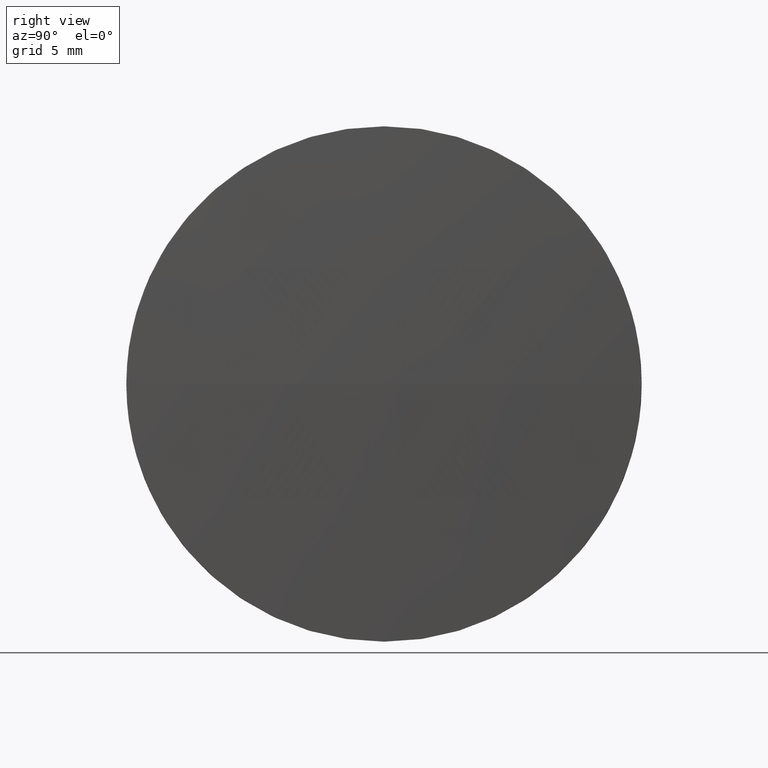
[diagram: clean part render]
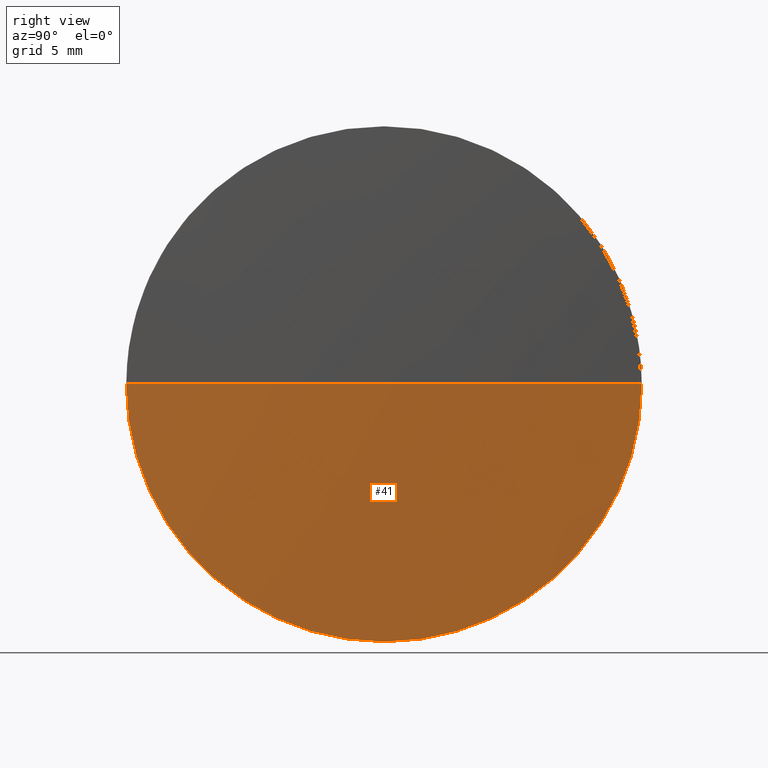
[diagram: same view with one face highlighted and labeled with its STEP entity id]
A machine part, right view. The second image highlights one B-rep face of the part: STEP entity #41.
In plain terms, the highlighted spherical surface has radius 268.967 mm.
Its self-contained STEP definition (entity closure, byte-faithful):
#6 = EDGE_CURVE ( 'NONE', #99, #131, #138, .T. ) ;
#9 = CARTESIAN_POINT ( 'NONE',  ( 695.2543296014569000, 68.74304805119973600, 0.0000000000000000000 ) ) ;
#11 = DIRECTION ( 'NONE',  ( -0.0000000000000000000, 0.0000000000000000000, -1.000000000000000000 ) ) ;
#20 = ORIENTED_EDGE ( 'NONE', *, *, #128, .F. ) ;
#28 = FACE_OUTER_BOUND ( 'NONE', #122, .T. ) ;
#32 = CARTESIAN_POINT ( 'NONE',  ( 694.9543296014569500, 56.04304805120011000, -1.555301434917091100E-015 ) ) ;
#35 = CARTESIAN_POINT ( 'NONE',  ( 694.9543296014569500, 68.74304805119973600, -12.70000000000000300 ) ) ;
#36 = DIRECTION ( 'NONE',  ( 0.0000000000000000000, 0.0000000000000000000, 1.000000000000000000 ) ) ;
#41 = ADVANCED_FACE ( 'NONE', ( #28 ), #117, .T. ) ;
#42 = CARTESIAN_POINT ( 'NONE',  ( 694.9543296014569500, 68.74304805119973600, 0.0000000000000000000 ) ) ;
#43 = DIRECTION ( 'NONE',  ( 0.0000000000000000000, 0.0000000000000000000, 1.000000000000000000 ) ) ;
#49 = CARTESIAN_POINT ( 'NONE',  ( 694.9543296014569500, 81.44304805119935500, 0.0000000000000000000 ) ) ;
#51 = DIRECTION ( 'NONE',  ( -0.0000000000000000000, 0.0000000000000000000, 1.000000000000000000 ) ) ;
#52 = VERTEX_POINT ( 'NONE', #32 ) ;
#55 = AXIS2_PLACEMENT_3D ( 'NONE', #141, #172, #36 ) ;
#75 = AXIS2_PLACEMENT_3D ( 'NONE', #105, #11, #114 ) ;
#78 = CIRCLE ( 'NONE', #55, 12.70000000000000300 ) ;
#81 = VERTEX_POINT ( 'NONE', #9 ) ;
#85 = ORIENTED_EDGE ( 'NONE', *, *, #184, .F. ) ;
#91 = DIRECTION ( 'NONE',  ( 0.0000000000000000000, 1.224646799147353200E-016, -1.000000000000000000 ) ) ;
#95 = CARTESIAN_POINT ( 'NONE',  ( 426.2876629347877600, 68.74304805119972200, 0.0000000000000000000 ) ) ;
#99 = VERTEX_POINT ( 'NONE', #49 ) ;
#103 = CIRCLE ( 'NONE', #176, 268.9666666666692000 ) ;
#105 = CARTESIAN_POINT ( 'NONE',  ( 426.2876629347877600, 68.74304805119972200, 0.0000000000000000000 ) ) ;
#114 = DIRECTION ( 'NONE',  ( 0.0000000000000000000, 1.000000000000000000, 0.0000000000000000000 ) ) ;
#117 = SPHERICAL_SURFACE ( 'NONE', #75, 268.9666666666692000 ) ;
#119 = AXIS2_PLACEMENT_3D ( 'NONE', #42, #147, #43 ) ;
#122 = EDGE_LOOP ( 'NONE', ( #85, #165, #20, #135 ) ) ;
#123 = DIRECTION ( 'NONE',  ( 1.000000000000000000, 0.0000000000000000000, 0.0000000000000000000 ) ) ;
#128 = EDGE_CURVE ( 'NONE', #131, #52, #78, .T. ) ;
#129 = AXIS2_PLACEMENT_3D ( 'NONE', #95, #91, #159 ) ;
#131 = VERTEX_POINT ( 'NONE', #35 ) ;
#135 = ORIENTED_EDGE ( 'NONE', *, *, #6, .F. ) ;
#138 = CIRCLE ( 'NONE', #119, 12.70000000000000300 ) ;
#141 = CARTESIAN_POINT ( 'NONE',  ( 694.9543296014569500, 68.74304805119973600, 0.0000000000000000000 ) ) ;
#147 = DIRECTION ( 'NONE',  ( -1.000000000000000000, -0.0000000000000000000, -0.0000000000000000000 ) ) ;
#159 = DIRECTION ( 'NONE',  ( 0.0000000000000000000, 1.000000000000000000, 1.224646799147353000E-016 ) ) ;
#162 = CIRCLE ( 'NONE', #129, 268.9666666666692000 ) ;
#165 = ORIENTED_EDGE ( 'NONE', *, *, #179, .T. ) ;
#171 = CARTESIAN_POINT ( 'NONE',  ( 426.2876629347877600, 68.74304805119972200, 0.0000000000000000000 ) ) ;
#172 = DIRECTION ( 'NONE',  ( -1.000000000000000000, -0.0000000000000000000, -0.0000000000000000000 ) ) ;
#176 = AXIS2_PLACEMENT_3D ( 'NONE', #171, #51, #123 ) ;
#179 = EDGE_CURVE ( 'NONE', #81, #52, #162, .T. ) ;
#184 = EDGE_CURVE ( 'NONE', #81, #99, #103, .T. ) ;